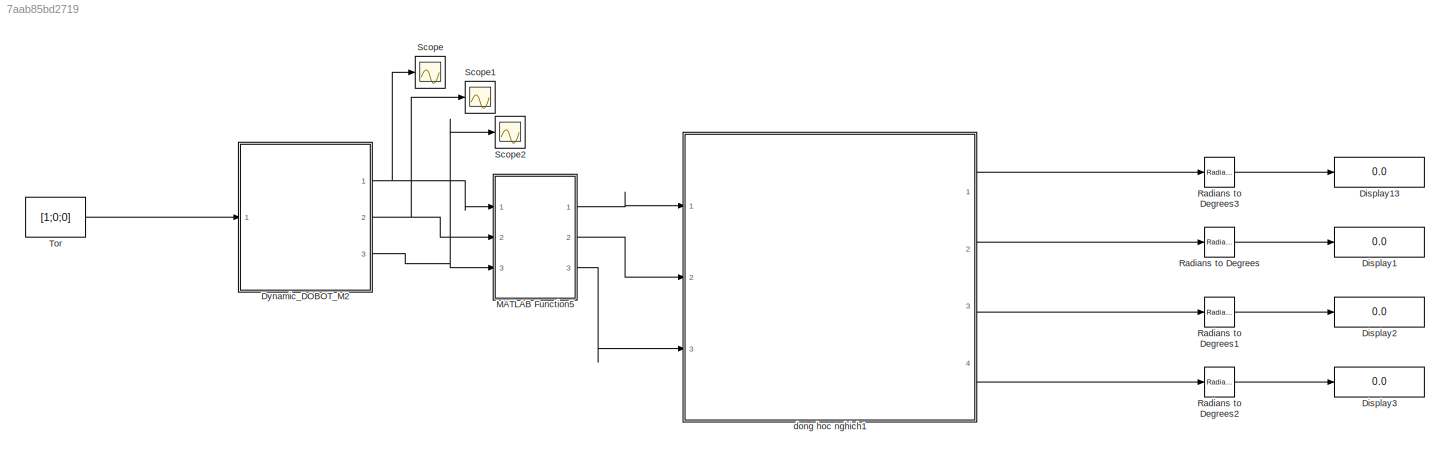
MODEL slx_7aab85bd2719
KIND model
CONFIG AbsTol = auto
CONFIG EnableMultiTasking = off
CONFIG FixedStep = 0.01
CONFIG MaxStep = auto
CONFIG MinStep = auto
CONFIG RelTol = 1e-3
CONFIG SampleTimeConstraint = Unconstrained
CONFIG SolverName = FixedStepAuto
CONFIG StartTime = 0.0
CONFIG StopTime = 10.0
BLOCK [Display] Display1
  Decimation = 1
  Ports = [1]
BLOCK [Display] Display13
  Decimation = 1
  Ports = [1]
BLOCK [Display] Display2
  Decimation = 1
  Ports = [1]
BLOCK [Display] Display3
  Decimation = 1
  Ports = [1]
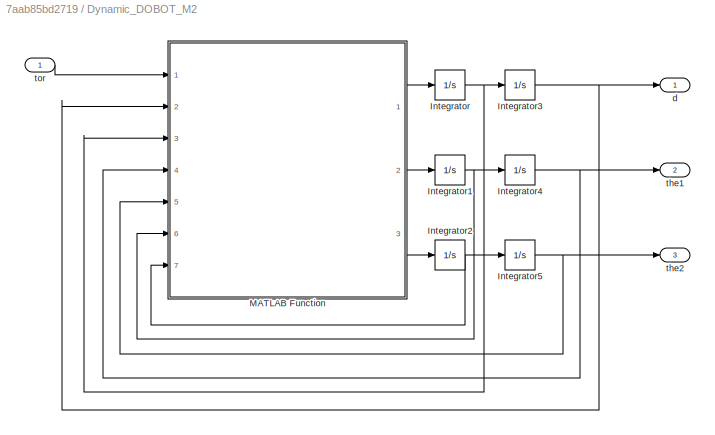
BLOCK [SubSystem] Dynamic_DOBOT_M2
  Ports = [1, 3]
  RequestExecContextInheritance = off
BLOCK [Integrator] Dynamic_DOBOT_M2/Integrator
  Ports = [1, 1]
BLOCK [Integrator] Dynamic_DOBOT_M2/Integrator1
  Ports = [1, 1]
BLOCK [Integrator] Dynamic_DOBOT_M2/Integrator2
  Ports = [1, 1]
BLOCK [Integrator] Dynamic_DOBOT_M2/Integrator3
  Ports = [1, 1]
BLOCK [Integrator] Dynamic_DOBOT_M2/Integrator4
  Ports = [1, 1]
BLOCK [Integrator] Dynamic_DOBOT_M2/Integrator5
  Ports = [1, 1]
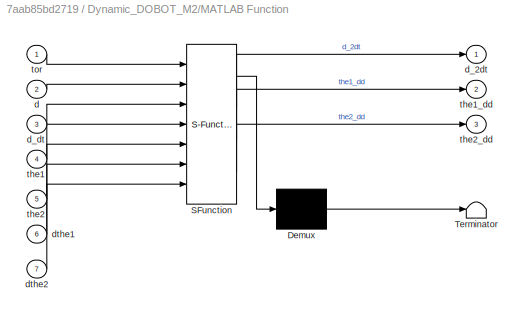
BLOCK [SubSystem] Dynamic_DOBOT_M2/MATLAB Function
  ErrorFcn = Stateflow.Translate.translate
  PermitHierarchicalResolution = ExplicitOnly
  Ports = [7, 3]
  RequestExecContextInheritance = off
  SFBlockType = MATLAB Function
  TreatAsAtomicUnit = on
BLOCK [Demux] Dynamic_DOBOT_M2/MATLAB Function/ Demux 
  Outputs = 1
  Ports = [1, 1]
BLOCK [S-Function] Dynamic_DOBOT_M2/MATLAB Function/ SFunction 
  EnableBusSupport = on
  FunctionName = sf_sfun
  PortCounts = [7 4]
  Ports = [7, 4]
  SFcnIsStateOwnerBlock = off
  SFunctionDeploymentMode = off
  Tag = Stateflow S-Function 1
BLOCK [Terminator] Dynamic_DOBOT_M2/MATLAB Function/ Terminator 
BLOCK [Inport] Dynamic_DOBOT_M2/MATLAB Function/d
  Port = 2
BLOCK [Outport] Dynamic_DOBOT_M2/MATLAB Function/d_2dt
  VectorParamsAs1DForOutWhenUnconnected = off
BLOCK [Inport] Dynamic_DOBOT_M2/MATLAB Function/d_dt
  Port = 3
BLOCK [Inport] Dynamic_DOBOT_M2/MATLAB Function/dthe1
  Port = 6
BLOCK [Inport] Dynamic_DOBOT_M2/MATLAB Function/dthe2
  Port = 7
BLOCK [Inport] Dynamic_DOBOT_M2/MATLAB Function/the1
  Port = 4
BLOCK [Outport] Dynamic_DOBOT_M2/MATLAB Function/the1_dd
  Port = 2
  VectorParamsAs1DForOutWhenUnconnected = off
BLOCK [Inport] Dynamic_DOBOT_M2/MATLAB Function/the2
  Port = 5
BLOCK [Outport] Dynamic_DOBOT_M2/MATLAB Function/the2_dd
  Port = 3
  VectorParamsAs1DForOutWhenUnconnected = off
BLOCK [Inport] Dynamic_DOBOT_M2/MATLAB Function/tor
BLOCK [Outport] Dynamic_DOBOT_M2/d
  VectorParamsAs1DForOutWhenUnconnected = off
BLOCK [Outport] Dynamic_DOBOT_M2/the1
  Port = 2
  VectorParamsAs1DForOutWhenUnconnected = off
BLOCK [Outport] Dynamic_DOBOT_M2/the2
  Port = 3
  VectorParamsAs1DForOutWhenUnconnected = off
BLOCK [Inport] Dynamic_DOBOT_M2/tor
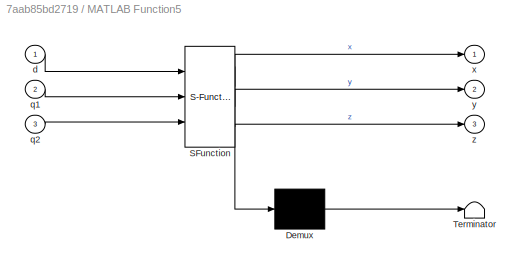
BLOCK [SubSystem] MATLAB Function5
  ErrorFcn = Stateflow.Translate.translate
  PermitHierarchicalResolution = ExplicitOnly
  Ports = [3, 3]
  RequestExecContextInheritance = off
  SFBlockType = MATLAB Function
  TreatAsAtomicUnit = on
BLOCK [Demux] MATLAB Function5/ Demux 
  Outputs = 1
  Ports = [1, 1]
BLOCK [S-Function] MATLAB Function5/ SFunction 
  EnableBusSupport = on
  FunctionName = sf_sfun
  PortCounts = [3 4]
  Ports = [3, 4]
  SFcnIsStateOwnerBlock = off
  SFunctionDeploymentMode = off
  Tag = Stateflow S-Function 7
BLOCK [Terminator] MATLAB Function5/ Terminator 
BLOCK [Inport] MATLAB Function5/d
BLOCK [Inport] MATLAB Function5/q1
  Port = 2
BLOCK [Inport] MATLAB Function5/q2
  Port = 3
BLOCK [Outport] MATLAB Function5/x
BLOCK [Outport] MATLAB Function5/y
  Port = 2
BLOCK [Outport] MATLAB Function5/z
  Port = 3
BLOCK [Reference] Radians to Degrees  REF=simulink_extras/Transformations/Radians
to Degrees
  Ports = [1, 1]
  SourceBlock = simulink_extras/Transformations/Radians\nto Degrees
  SourceProductBaseCode = SL
  SourceType = RadiansToDegrees
BLOCK [Reference] Radians to Degrees1  REF=simulink_extras/Transformations/Radians
to Degrees
  Ports = [1, 1]
  SourceBlock = simulink_extras/Transformations/Radians\nto Degrees
  SourceProductBaseCode = SL
  SourceType = RadiansToDegrees
BLOCK [Reference] Radians to Degrees2  REF=simulink_extras/Transformations/Radians
to Degrees
  Ports = [1, 1]
  SourceBlock = simulink_extras/Transformations/Radians\nto Degrees
  SourceProductBaseCode = SL
  SourceType = RadiansToDegrees
BLOCK [Reference] Radians to Degrees3  REF=simulink_extras/Transformations/Radians
to Degrees
  Ports = [1, 1]
  SourceBlock = simulink_extras/Transformations/Radians\nto Degrees
  SourceProductBaseCode = SL
  SourceType = RadiansToDegrees
BLOCK [Scope] Scope
  Floating = off
  NumInputPorts = 1
  Ports = [1]
  ScopeSpecificationString = Simulink.scopes.TimeScopeBlockCfg('CurrentConfiguration', extmgr.ConfigurationSet(extmgr.Configuration('Core','General UI',true),extmgr.Configuration('Core','Source UI',true),extmgr.Configuration('Sources','WiredSimulink',true),extmgr.Configuration('Visuals','Time Domain',true,'SerializedDisplays',{struct('MinYLimReal','-533.0625','MaxYLimReal','59.22917','YLabelReal','','MinYLimMag',' 0.00000','M...<+1346ch>
BLOCK [Scope] Scope1
  Floating = off
  NumInputPorts = 1
  Ports = [1]
  ScopeSpecificationString = Simulink.scopes.TimeScopeBlockCfg('CurrentConfiguration', extmgr.ConfigurationSet(extmgr.Configuration('Core','General UI',true),extmgr.Configuration('Core','Source UI',true),extmgr.Configuration('Sources','WiredSimulink',true,'DataLoggingVariableName','ScopeData1'),extmgr.Configuration('Visuals','Time Domain',true,'SerializedDisplays',{struct('MinYLimReal','-1.00000','MaxYLimReal','1.00000','YLab...<+1377ch>
BLOCK [Scope] Scope2
  Floating = off
  NumInputPorts = 1
  Ports = [1]
  ScopeSpecificationString = Simulink.scopes.TimeScopeBlockCfg('CurrentConfiguration', extmgr.ConfigurationSet(extmgr.Configuration('Core','General UI',true),extmgr.Configuration('Core','Source UI',true),extmgr.Configuration('Sources','WiredSimulink',true,'DataLoggingVariableName','ScopeData2'),extmgr.Configuration('Visuals','Time Domain',true,'SerializedDisplays',{struct('MinYLimReal','-1.00000','MaxYLimReal','1.00000','YLab...<+1377ch>
BLOCK [Constant] Tor
  Value = [1;0;0]
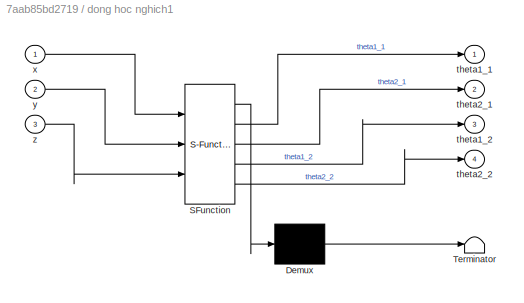
BLOCK [SubSystem] dong hoc nghich1
  ErrorFcn = Stateflow.Translate.translate
  PermitHierarchicalResolution = ExplicitOnly
  Ports = [3, 4]
  RequestExecContextInheritance = off
  SFBlockType = MATLAB Function
  TreatAsAtomicUnit = on
BLOCK [Demux] dong hoc nghich1/ Demux 
  Outputs = 1
  Ports = [1, 1]
BLOCK [S-Function] dong hoc nghich1/ SFunction 
  EnableBusSupport = on
  FunctionName = sf_sfun
  PortCounts = [3 5]
  Ports = [3, 5]
  SFcnIsStateOwnerBlock = off
  SFunctionDeploymentMode = off
  Tag = Stateflow S-Function 6
BLOCK [Terminator] dong hoc nghich1/ Terminator 
BLOCK [Outport] dong hoc nghich1/theta1_1
BLOCK [Outport] dong hoc nghich1/theta1_2
  Port = 3
BLOCK [Outport] dong hoc nghich1/theta2_1
  Port = 2
BLOCK [Outport] dong hoc nghich1/theta2_2
  Port = 4
BLOCK [Inport] dong hoc nghich1/x
BLOCK [Inport] dong hoc nghich1/y
  Port = 2
BLOCK [Inport] dong hoc nghich1/z
  Port = 3
NET Dynamic_DOBOT_M2/Integrator1:1 -> Dynamic_DOBOT_M2/Integrator4:1, Dynamic_DOBOT_M2/MATLAB Function:6
NET Dynamic_DOBOT_M2/Integrator2:1 -> Dynamic_DOBOT_M2/Integrator5:1, Dynamic_DOBOT_M2/MATLAB Function:7
NET Dynamic_DOBOT_M2/Integrator3:1 -> Dynamic_DOBOT_M2/MATLAB Function:2, Dynamic_DOBOT_M2/d:1
NET Dynamic_DOBOT_M2/Integrator4:1 -> Dynamic_DOBOT_M2/MATLAB Function:4, Dynamic_DOBOT_M2/the1:1
NET Dynamic_DOBOT_M2/Integrator5:1 -> Dynamic_DOBOT_M2/MATLAB Function:5, Dynamic_DOBOT_M2/the2:1
NET Dynamic_DOBOT_M2/Integrator:1 -> Dynamic_DOBOT_M2/Integrator3:1, Dynamic_DOBOT_M2/MATLAB Function:3
LINE Dynamic_DOBOT_M2/MATLAB Function:1 -> Dynamic_DOBOT_M2/Integrator:1
LINE Dynamic_DOBOT_M2/MATLAB Function:2 -> Dynamic_DOBOT_M2/Integrator1:1
LINE Dynamic_DOBOT_M2/MATLAB Function:3 -> Dynamic_DOBOT_M2/Integrator2:1
LINE Dynamic_DOBOT_M2/tor:1 -> Dynamic_DOBOT_M2/MATLAB Function:1
NET Dynamic_DOBOT_M2:1 -> MATLAB Function5:1, Scope:1
NET Dynamic_DOBOT_M2:2 -> MATLAB Function5:2, Scope1:1
NET Dynamic_DOBOT_M2:3 -> MATLAB Function5:3, Scope2:1
LINE MATLAB Function5:1 -> dong hoc nghich1:1
LINE MATLAB Function5:2 -> dong hoc nghich1:2
LINE MATLAB Function5:3 -> dong hoc nghich1:3
LINE Radians to Degrees1:1 -> Display2:1
LINE Radians to Degrees2:1 -> Display3:1
LINE Radians to Degrees3:1 -> Display13:1
LINE Radians to Degrees:1 -> Display1:1
LINE Tor:1 -> Dynamic_DOBOT_M2:1
LINE dong hoc nghich1:1 -> Radians to Degrees3:1
LINE dong hoc nghich1:2 -> Radians to Degrees:1
LINE dong hoc nghich1:3 -> Radians to Degrees1:1
LINE dong hoc nghich1:4 -> Radians to Degrees2:1
note: NET lines group one-source signal fan-out (src -> all destinations, sorted); 1:1 wires keep LINE
CHART Dynamic_DOBOT_M2/MATLAB Function states=1 transitions=1
  STATE_LABEL 'eML_blk_kernel()'
  STATE_LABEL 'SCRIPT:\nfunction [d_2dt, the1_dd, the2_dd] = Dynamic(tor,d, d_dt,the1, the2, dthe1, dthe2)\nm1=1; m2=1; m3=1;\nL1=1; L2=1; L3=1;\ng=9.81;\n% MA Tran M\nM11=m1+m2+m3;\nM12=0;\nM13=0;\nM21=0;\nM22=L2*L2*m2+L2*L2*m3+L3*L3*m3+2*L2*L3*m3*cos(the2);\nM23=L3*m3*(L3+L2*cos(the2));\nM31=0;\nM32=L3*m3*(L3+L2*cos(the2));\nM33=L3*L3*m3;\n% Ma tran V\nV11=0; \nV12= -L2*L3*dthe2*m3*sin(the2)*(2*dthe1+dthe2);\nV13= L2*L3*the1*th...<+280ch>'
CHART dong hoc nghich1 states=1 transitions=1
  STATE_LABEL 'eML_blk_kernel()'
  STATE_LABEL 'SCRIPT:\n%%function [theta1, theta2] = Inverse(x,y,z)\n    %%L1=1; \n   %% L2=1; \n    %%L3=1;\n        %% theta2:\n    %%c2=((x-L1)^2+y^2-L3^2-L1^2)/(2*L2*L3);\n    % Bo nghiem 1\n    %%for i=1:2\n   %%     if i==1\n     %%     s2=sqrt(1-c2^2);\n    %%    else\n   %%       s2=-sqrt(1-c2^2);\n   %% end\n    %%theta2=atan2(s2,c2);\n   %% c1=((x-L1)*(L3*cos(theta2)+L2)+y*L3*sin(theta2))/((L3*cos(theta2)+L2)*(L3*co...<+1546ch>'
CHART MATLAB Function5 states=1 transitions=1
  STATE_LABEL 'eML_blk_kernel()'
  STATE_LABEL 'SCRIPT:\nfunction [x,y,z] = forward(d,q1,q2)\n%% Khai bao bien\nl1=1;\nl2=1;\nl3=1;\nx=l1 + l2*cosd(q1) + l3* ((cosd(q1)*cosd(q2))-sind(q1)*sind(q2));\ny= cosd(q1)*l3*sind(q2) + sind(q1)*(l2+l3*cosd(q2));\nz=d;\n%%diem dau cuoi\n    \n'
CHART  states=0 transitions=0
CHART  states=0 transitions=0
CHART  states=0 transitions=0
